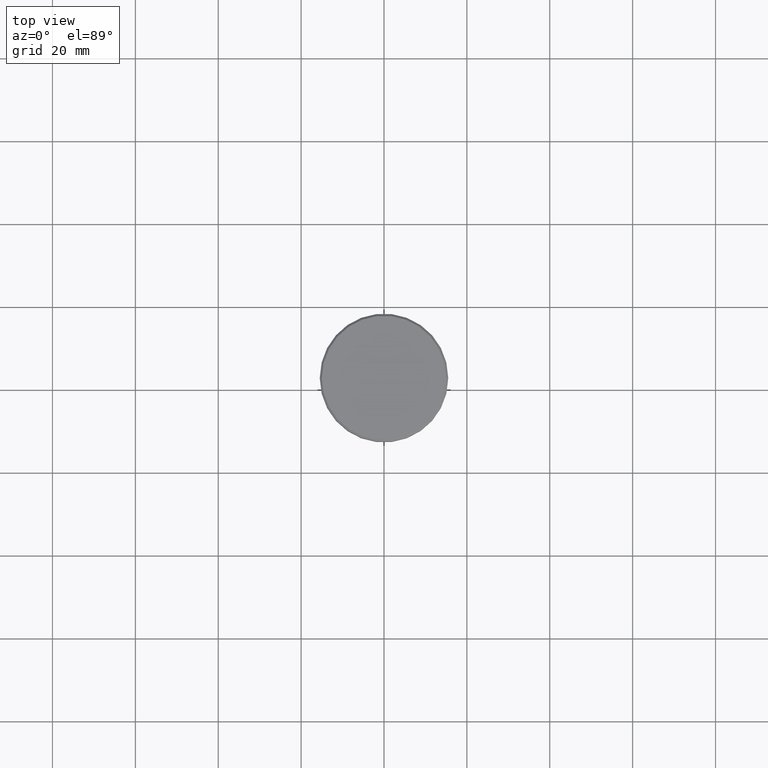
[diagram: clean part render]
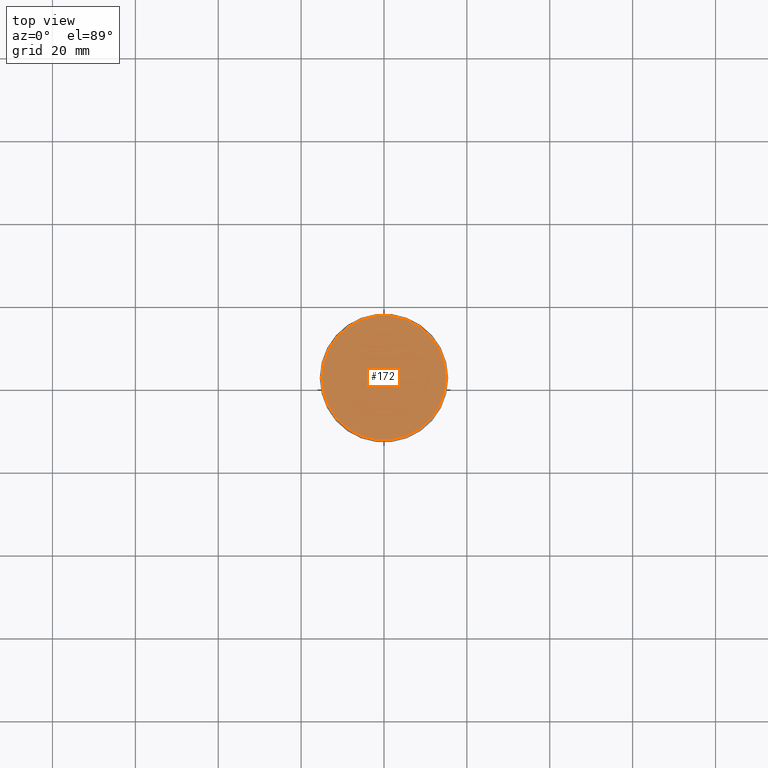
[diagram: same view with one face highlighted and labeled with its STEP entity id]
A machine part, top view. The second image highlights one B-rep face of the part: STEP entity #172.
In plain terms, the highlighted planar face has unit normal (0, -0, 1).
Its self-contained STEP definition (entity closure, byte-faithful):
#62 = PLANE ( 'NONE',  #451 ) ;
#172 = ADVANCED_FACE ( 'NONE', ( #796 ), #62, .T. ) ;
#179 = CIRCLE ( 'NONE', #964, 15.00000000000004086 ) ;
#196 = AXIS2_PLACEMENT_3D ( 'NONE', #471, #840, #578 ) ;
#425 = DIRECTION ( 'NONE',  ( 0.000000000000000000, -0.000000000000000000, 1.000000000000000000 ) ) ;
#451 = AXIS2_PLACEMENT_3D ( 'NONE', #957, #425, #790 ) ;
#471 = CARTESIAN_POINT ( 'NONE',  ( 0.000000000000000000, 0.000000000000000000, 0.000000000000000000 ) ) ;
#571 = ORIENTED_EDGE ( 'NONE', *, *, #990, .T. ) ;
#578 = DIRECTION ( 'NONE',  ( 1.000000000000000000, 0.000000000000000000, 0.000000000000000000 ) ) ;
#648 = CIRCLE ( 'NONE', #196, 15.00000000000004086 ) ;
#667 = CARTESIAN_POINT ( 'NONE',  ( 15.00000000000004086, 1.867586368699716531E-15, 0.000000000000000000 ) ) ;
#685 = EDGE_LOOP ( 'NONE', ( #768, #571 ) ) ;
#768 = ORIENTED_EDGE ( 'NONE', *, *, #903, .T. ) ;
#782 = DIRECTION ( 'NONE',  ( -0.000000000000000000, -0.000000000000000000, 1.000000000000000000 ) ) ;
#790 = DIRECTION ( 'NONE',  ( 1.000000000000000000, 0.000000000000000000, 0.000000000000000000 ) ) ;
#796 = FACE_OUTER_BOUND ( 'NONE', #685, .T. ) ;
#820 = VERTEX_POINT ( 'NONE', #667 ) ;
#840 = DIRECTION ( 'NONE',  ( -0.000000000000000000, -0.000000000000000000, 1.000000000000000000 ) ) ;
#886 = DIRECTION ( 'NONE',  ( 1.000000000000000000, 0.000000000000000000, 0.000000000000000000 ) ) ;
#903 = EDGE_CURVE ( 'NONE', #913, #820, #648, .T. ) ;
#913 = VERTEX_POINT ( 'NONE', #1153 ) ;
#957 = CARTESIAN_POINT ( 'NONE',  ( 0.000000000000000000, 0.000000000000000000, 0.000000000000000000 ) ) ;
#964 = AXIS2_PLACEMENT_3D ( 'NONE', #1169, #782, #886 ) ;
#990 = EDGE_CURVE ( 'NONE', #820, #913, #179, .T. ) ;
#1153 = CARTESIAN_POINT ( 'NONE',  ( -15.00000000000004086, 0.000000000000000000, 0.000000000000000000 ) ) ;
#1169 = CARTESIAN_POINT ( 'NONE',  ( 0.000000000000000000, 0.000000000000000000, 0.000000000000000000 ) ) ;